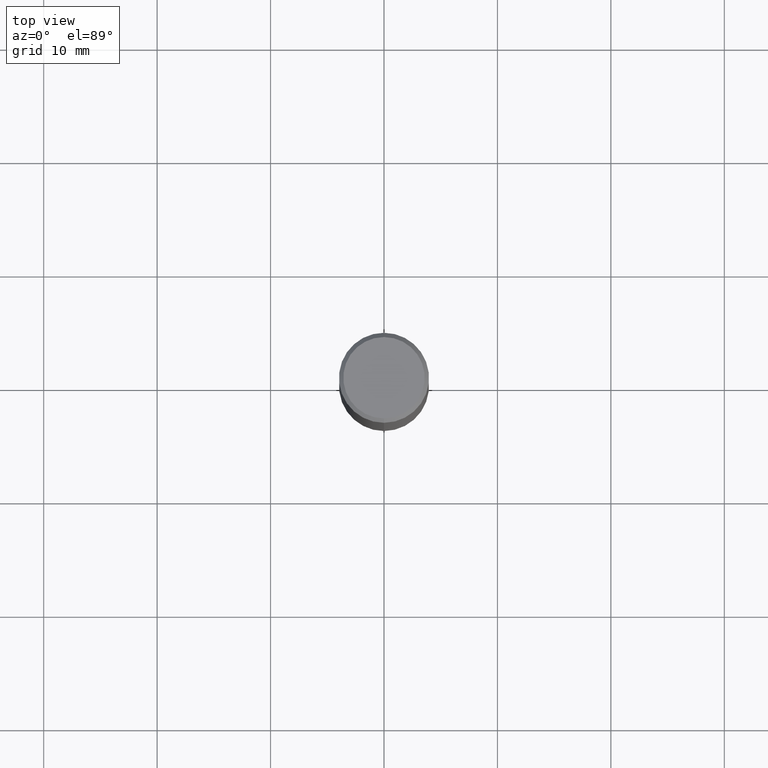
[diagram: clean part render]
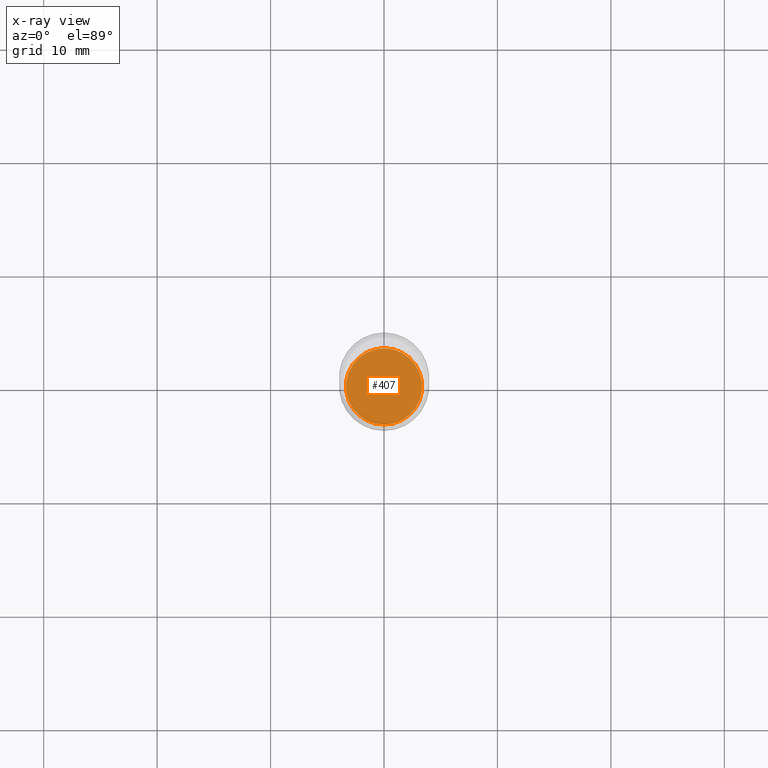
[diagram: x-ray — body ghosted, one internal face saturated and labeled with its STEP entity id]
A machine part, top view, then the same camera in x-ray: the body is ghosted and one INTERNAL B-rep face — a face not visible from any outside direction — is saturated and labeled: STEP entity #407.
In plain terms, the highlighted planar face has unit normal (-0, 0, 1).
Its self-contained STEP definition (entity closure, byte-faithful):
#91 = AXIS2_PLACEMENT_3D ( 'NONE', #251, #283, #248 ) ;
#96 = CIRCLE ( 'NONE', #440, 0.1323000000000000009 ) ;
#97 = CARTESIAN_POINT ( 'NONE',  ( 9.418243962500552058E-16, 0.1322999999999938947, -1.750000000000000666 ) ) ;
#137 = ORIENTED_EDGE ( 'NONE', *, *, #400, .F. ) ;
#200 = AXIS2_PLACEMENT_3D ( 'NONE', #263, #218, #491 ) ;
#212 = EDGE_LOOP ( 'NONE', ( #137, #443 ) ) ;
#218 = DIRECTION ( 'NONE',  ( -2.445566685211259906E-29, 3.491341170506808259E-15, 1.000000000000000000 ) ) ;
#222 = CIRCLE ( 'NONE', #91, 0.1323000000000000009 ) ;
#248 = DIRECTION ( 'NONE',  ( -6.982962677686265922E-15, -1.000000000000000000, 4.129777768199944284E-15 ) ) ;
#251 = CARTESIAN_POINT ( 'NONE',  ( 4.279741699119705467E-29, -6.109847048386914553E-15, -1.750000000000000222 ) ) ;
#253 = DIRECTION ( 'NONE',  ( -2.445566685211260187E-29, 3.491341170506808259E-15, 1.000000000000000000 ) ) ;
#255 = PLANE ( 'NONE',  #200 ) ;
#263 = CARTESIAN_POINT ( 'NONE',  ( 4.279741699119705467E-29, -6.109847048386914553E-15, -1.750000000000000222 ) ) ;
#283 = DIRECTION ( 'NONE',  ( -2.445566685211260187E-29, 3.491341170506808259E-15, 1.000000000000000000 ) ) ;
#291 = EDGE_CURVE ( 'NONE', #484, #409, #222, .T. ) ;
#330 = DIRECTION ( 'NONE',  ( -6.982962677686265922E-15, -1.000000000000000000, 4.129777768199944284E-15 ) ) ;
#367 = FACE_OUTER_BOUND ( 'NONE', #212, .T. ) ;
#400 = EDGE_CURVE ( 'NONE', #409, #484, #96, .T. ) ;
#407 = ADVANCED_FACE ( 'NONE', ( #367 ), #255, .F. ) ;
#409 = VERTEX_POINT ( 'NONE', #487 ) ;
#410 = CARTESIAN_POINT ( 'NONE',  ( 4.279741699119705467E-29, -6.109847048386914553E-15, -1.750000000000000222 ) ) ;
#440 = AXIS2_PLACEMENT_3D ( 'NONE', #410, #253, #330 ) ;
#443 = ORIENTED_EDGE ( 'NONE', *, *, #291, .F. ) ;
#484 = VERTEX_POINT ( 'NONE', #97 ) ;
#487 = CARTESIAN_POINT ( 'NONE',  ( -9.238459622578502223E-16, -0.1323000000000061072, -1.749999999999999556 ) ) ;
#491 = DIRECTION ( 'NONE',  ( -6.982962677686265922E-15, -1.000000000000000000, 3.491341170506808259E-15 ) ) ;